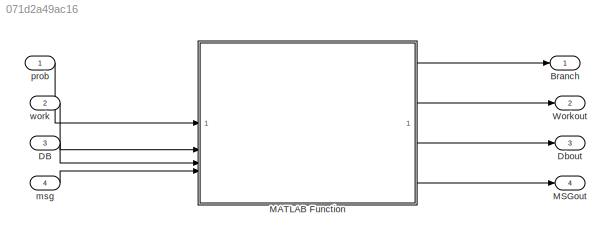
MODEL slx_071d2a49ac16
KIND model
CONFIG AbsTol = auto
CONFIG EnableMultiTasking = off
CONFIG FixedStep = auto
CONFIG MaxStep = auto
CONFIG MinStep = auto
CONFIG RelTol = 1e-3
CONFIG SampleTimeConstraint = Unconstrained
CONFIG SolverName = VariableStepAuto
CONFIG StartTime = 0.0
CONFIG StopTime = 10.0
BLOCK [Outport] Branch
BLOCK [Inport] DB
  Port = 3
BLOCK [Outport] Dbout
  Port = 3
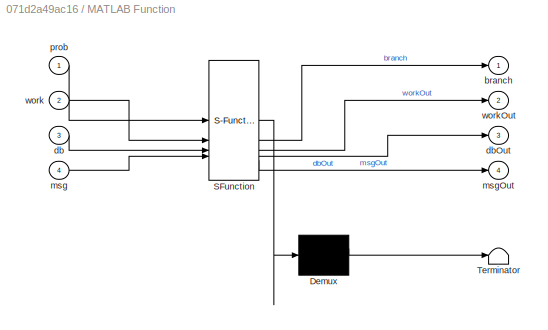
BLOCK [SubSystem] MATLAB Function
  ErrorFcn = Stateflow.Translate.translate
  PermitHierarchicalResolution = ExplicitOnly
  SFBlockType = MATLAB Function
  TreatAsAtomicUnit = on
BLOCK [Demux] MATLAB Function/ Demux 
  Outputs = 1
BLOCK [S-Function] MATLAB Function/ SFunction 
  EnableBusSupport = off
  FunctionName = sf_sfun
  PortCounts = [4 5]
  SFcnIsStateOwnerBlock = off
  SFunctionDeploymentMode = off
  Tag = Stateflow S-Function 2
BLOCK [Terminator] MATLAB Function/ Terminator 
BLOCK [Outport] MATLAB Function/branch
BLOCK [Inport] MATLAB Function/db
  Port = 3
BLOCK [Outport] MATLAB Function/dbOut
  Port = 3
BLOCK [Inport] MATLAB Function/msg
  Port = 4
BLOCK [Outport] MATLAB Function/msgOut
  Port = 4
BLOCK [Inport] MATLAB Function/prob
BLOCK [Inport] MATLAB Function/work
  Port = 2
BLOCK [Outport] MATLAB Function/workOut
  Port = 2
BLOCK [Outport] MSGout
  Port = 4
BLOCK [Outport] Workout
  Port = 2
BLOCK [Inport] msg
  Port = 4
BLOCK [Inport] prob
BLOCK [Inport] work
  Port = 2
LINE DB:1 -> MATLAB Function:3
LINE MATLAB Function:1 -> Branch:1
LINE MATLAB Function:2 -> Workout:1
LINE MATLAB Function:3 -> Dbout:1
LINE MATLAB Function:4 -> MSGout:1
LINE msg:1 -> MATLAB Function:4
LINE prob:1 -> MATLAB Function:1
LINE work:1 -> MATLAB Function:2
CHART MATLAB Function states=1 transitions=1
  STATE_LABEL 'eML_blk_kernel()'
  STATE_LABEL 'SCRIPT:\nfunction [branch, workOut, dbOut, msgOut] = caseOfThree(prob, work, db, msg)\n    r = rand();\n\n    if r < 0.5\n        branch = 1; \n    elseif r < 0.9\n        branch = 2;\n    else\n        branch = 3;\n    end\n    \n    workOut = work;\n    dbOut = db;\n    msgOut = msg;\nend\n'
CHART  states=0 transitions=0
